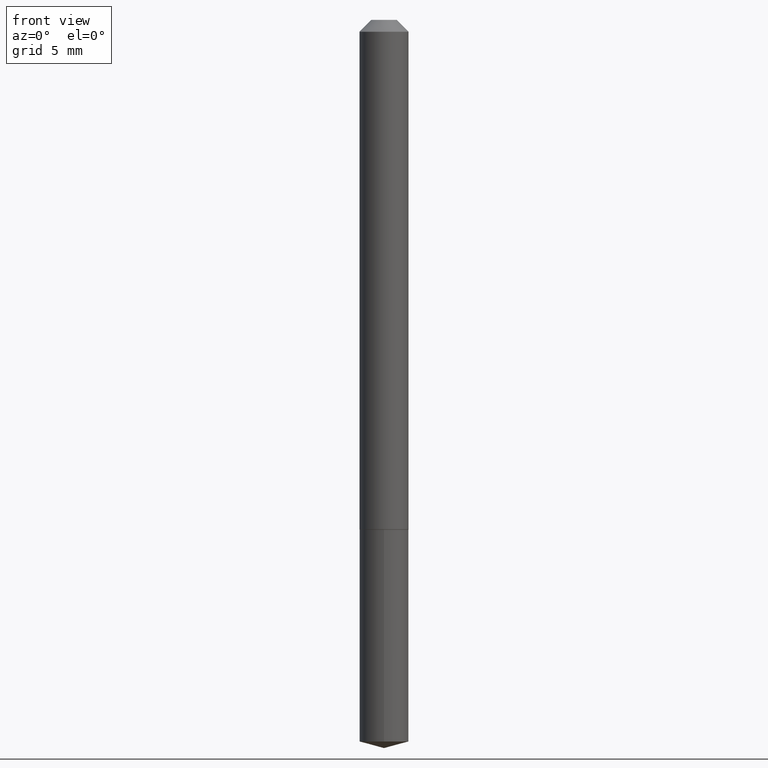
[diagram: clean part render]
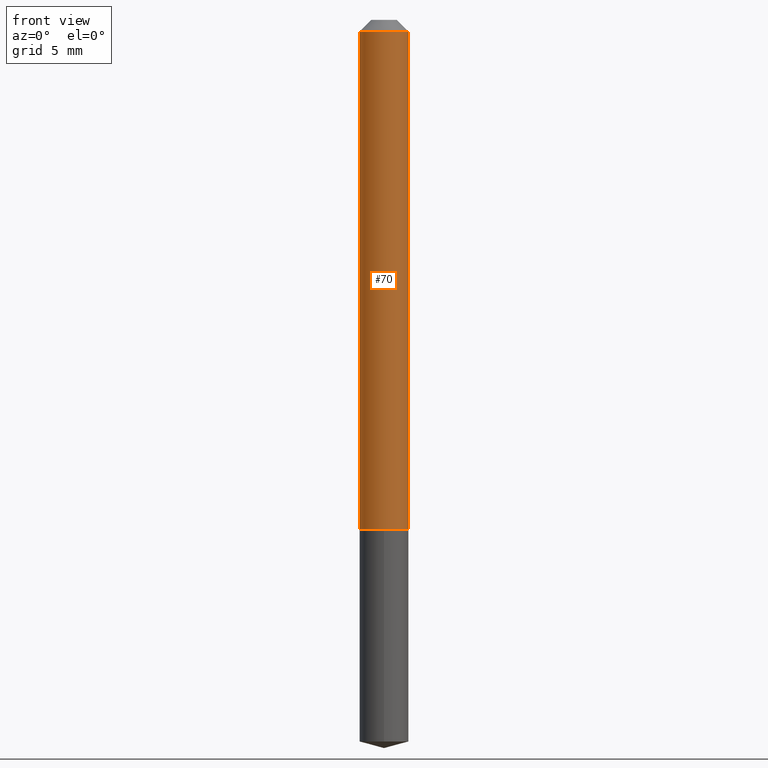
[diagram: same view with one face highlighted and labeled with its STEP entity id]
A machine part, front view. The second image highlights one B-rep face of the part: STEP entity #70.
In plain terms, the highlighted cylindrical surface (edge-blend (fillet) strip) has radius 1.6497 mm, axis along (-0, 0, 1).
Its self-contained STEP definition (entity closure, byte-faithful):
#7 = DIRECTION ( 'NONE',  ( 1.000000000000000000, -6.982962677686265922E-15, 0.000000000000000000 ) ) ;
#12 = DIRECTION ( 'NONE',  ( -2.445468806185136877E-29, 3.491481338843145188E-15, 1.000000000000000000 ) ) ;
#26 = EDGE_CURVE ( 'NONE', #328, #307, #56, .T. ) ;
#28 = ORIENTED_EDGE ( 'NONE', *, *, #281, .T. ) ;
#50 = CARTESIAN_POINT ( 'NONE',  ( -0.06494999999999999385, -1.949457644628476450E-15, -0.03125000000000020123 ) ) ;
#56 = CIRCLE ( 'NONE', #193, 0.06495000000000016038 ) ;
#67 = DIRECTION ( 'NONE',  ( -2.445468806185136597E-29, 3.491481338843145583E-15, 1.000000000000000000 ) ) ;
#70 = ADVANCED_FACE ( 'NONE', ( #221 ), #343, .T. ) ;
#74 = DIRECTION ( 'NONE',  ( -2.445468806185136597E-29, 3.491481338843145583E-15, 1.000000000000000000 ) ) ;
#96 = CARTESIAN_POINT ( 'NONE',  ( 0.06494999999999999385, -5.626522177545718995E-16, -0.03125000000000020123 ) ) ;
#114 = VERTEX_POINT ( 'NONE', #96 ) ;
#132 = CARTESIAN_POINT ( 'NONE',  ( 0.000000000000000000, 0.000000000000000000, 0.000000000000000000 ) ) ;
#152 = EDGE_LOOP ( 'NONE', ( #234, #335, #28, #177 ) ) ;
#162 = AXIS2_PLACEMENT_3D ( 'NONE', #349, #74, #287 ) ;
#165 = CARTESIAN_POINT ( 'NONE',  ( -0.06495000000000007712, 4.614975068761856187E-16, -3.194848341120565109E-30 ) ) ;
#171 = VECTOR ( 'NONE', #12, 39.37007874015748143 ) ;
#177 = ORIENTED_EDGE ( 'NONE', *, *, #309, .F. ) ;
#185 = CIRCLE ( 'NONE', #162, 0.06494999999999999385 ) ;
#193 = AXIS2_PLACEMENT_3D ( 'NONE', #252, #280, #7 ) ;
#213 = DIRECTION ( 'NONE',  ( 1.000000000000000000, -6.982962677686267499E-15, 4.876176775795936914E-29 ) ) ;
#221 = FACE_OUTER_BOUND ( 'NONE', #152, .T. ) ;
#222 = AXIS2_PLACEMENT_3D ( 'NONE', #132, #67, #213 ) ;
#234 = ORIENTED_EDGE ( 'NONE', *, *, #274, .F. ) ;
#252 = CARTESIAN_POINT ( 'NONE',  ( 3.300893794588698070E-29, -4.712801511170477994E-15, -1.349800000000000111 ) ) ;
#253 = CARTESIAN_POINT ( 'NONE',  ( 0.06495000000000016038, -5.166344937086201976E-15, -1.349800000000000111 ) ) ;
#274 = EDGE_CURVE ( 'NONE', #328, #331, #374, .T. ) ;
#280 = DIRECTION ( 'NONE',  ( -2.445468806185136597E-29, 3.491481338843145583E-15, 1.000000000000000000 ) ) ;
#281 = EDGE_CURVE ( 'NONE', #307, #114, #345, .T. ) ;
#286 = CARTESIAN_POINT ( 'NONE',  ( 0.06495000000000007712, -4.535434259157235877E-16, 3.167076815879464619E-30 ) ) ;
#287 = DIRECTION ( 'NONE',  ( 1.000000000000000000, -6.982962677686265133E-15, 0.000000000000000000 ) ) ;
#307 = VERTEX_POINT ( 'NONE', #253 ) ;
#309 = EDGE_CURVE ( 'NONE', #331, #114, #185, .T. ) ;
#328 = VERTEX_POINT ( 'NONE', #353 ) ;
#331 = VERTEX_POINT ( 'NONE', #50 ) ;
#333 = VECTOR ( 'NONE', #350, 39.37007874015748143 ) ;
#335 = ORIENTED_EDGE ( 'NONE', *, *, #26, .T. ) ;
#343 = CYLINDRICAL_SURFACE ( 'NONE', #222, 0.06495000000000007712 ) ;
#345 = LINE ( 'NONE', #286, #333 ) ;
#349 = CARTESIAN_POINT ( 'NONE',  ( 7.642090019328601786E-31, -1.091087918388490144E-16, -0.03125000000000020123 ) ) ;
#350 = DIRECTION ( 'NONE',  ( -2.445468806185136877E-29, 3.491481338843145188E-15, 1.000000000000000000 ) ) ;
#353 = CARTESIAN_POINT ( 'NONE',  ( -0.06495000000000016038, -4.251304004294291685E-15, -1.349800000000000111 ) ) ;
#374 = LINE ( 'NONE', #165, #171 ) ;